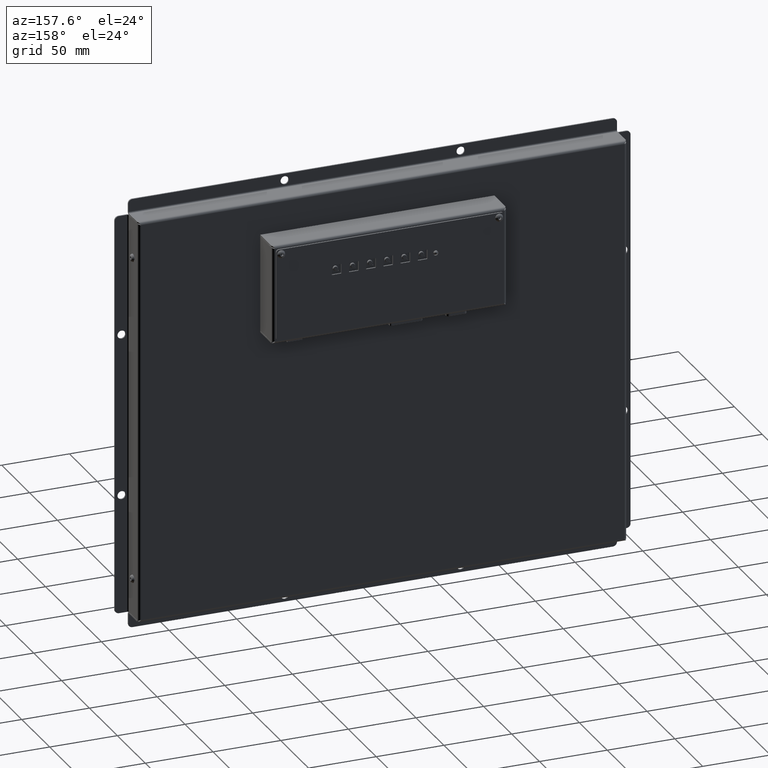
[diagram: clean part render]
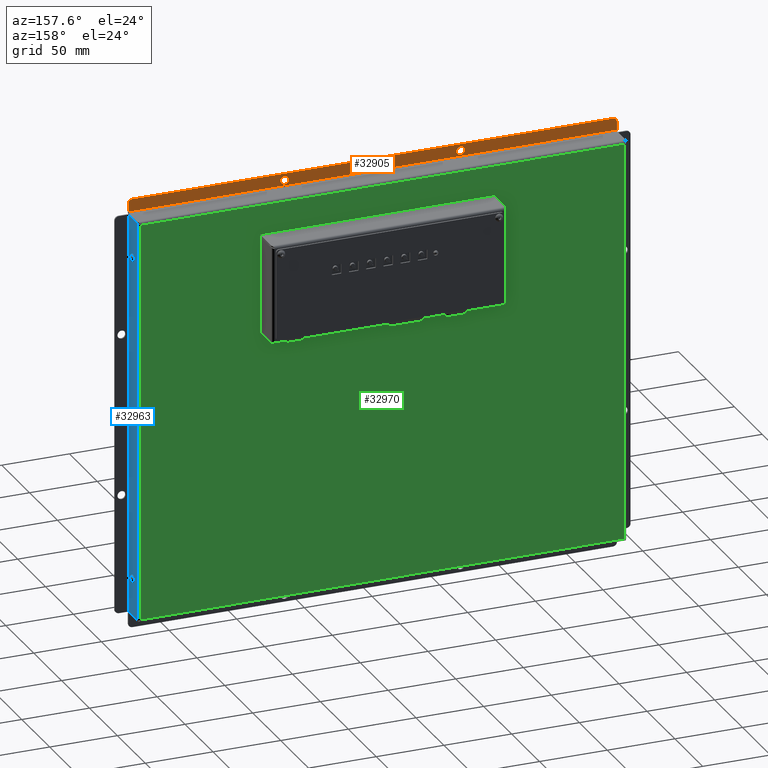
[diagram: same view with three faces highlighted in distinct colors, each labeled with its STEP entity id]
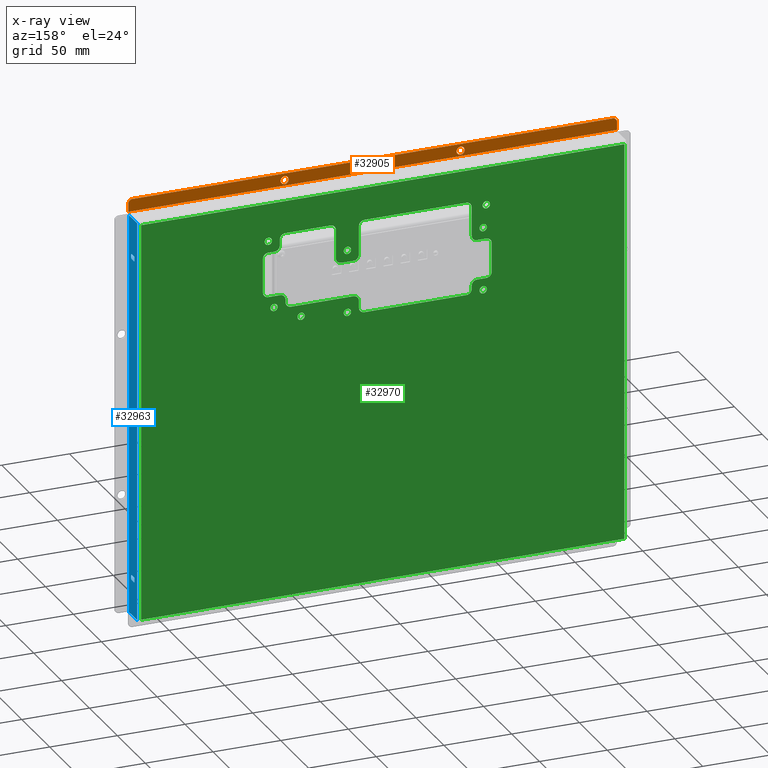
[diagram: x-ray of the same camera — body ghosted, the three highlighted faces saturated]
A machine part, auxiliary view with three faces highlighted in distinct colors.
The next image is the same camera in x-ray (body ghosted, the three faces saturated) — at least one of them is partly hidden behind the body in this view.
Their STEP definitions:

[orange] entity #32905 — the highlighted planar face has unit normal (0, 1, 0).
#2015=FACE_BOUND('',#5424,.T.);
#2016=FACE_BOUND('',#5425,.T.);
#2340=PLANE('',#35316);
#3549=FACE_OUTER_BOUND('',#5423,.T.);
#5423=EDGE_LOOP('',(#23352,#23353,#23354,#23355,#23356,#23357));
#5424=EDGE_LOOP('',(#23358));
#5425=EDGE_LOOP('',(#23359));
#7659=LINE('',#47877,#10869);
#7662=LINE('',#47883,#10872);
#7663=LINE('',#47885,#10873);
#7664=LINE('',#47887,#10874);
#10869=VECTOR('',#38702,10.);
#10872=VECTOR('',#38707,10.);
#10873=VECTOR('',#38708,10.);
#10874=VECTOR('',#38709,10.);
#13980=CIRCLE('',#35268,3.);
#13990=CIRCLE('',#35283,3.);
#14006=CIRCLE('',#35314,3.);
#14007=CIRCLE('',#35317,3.);
#15262=VERTEX_POINT('',#47738);
#15272=VERTEX_POINT('',#47768);
#15310=VERTEX_POINT('',#47870);
#15311=VERTEX_POINT('',#47872);
#15312=VERTEX_POINT('',#47876);
#15314=VERTEX_POINT('',#47882);
#15315=VERTEX_POINT('',#47884);
#15316=VERTEX_POINT('',#47886);
#18470=EDGE_CURVE('',#15262,#15262,#13980,.T.);
#18485=EDGE_CURVE('',#15272,#15272,#13990,.T.);
#18535=EDGE_CURVE('',#15310,#15311,#14006,.T.);
#18537=EDGE_CURVE('',#15312,#15311,#7659,.T.);
#18540=EDGE_CURVE('',#15314,#15310,#7662,.T.);
#18541=EDGE_CURVE('',#15314,#15315,#7663,.T.);
#18542=EDGE_CURVE('',#15315,#15316,#7664,.T.);
#18543=EDGE_CURVE('',#15312,#15316,#14007,.T.);
#23352=ORIENTED_EDGE('',*,*,#18535,.F.);
#23353=ORIENTED_EDGE('',*,*,#18540,.F.);
#23354=ORIENTED_EDGE('',*,*,#18541,.T.);
#23355=ORIENTED_EDGE('',*,*,#18542,.T.);
#23356=ORIENTED_EDGE('',*,*,#18543,.F.);
#23357=ORIENTED_EDGE('',*,*,#18537,.T.);
#23358=ORIENTED_EDGE('',*,*,#18470,.T.);
#23359=ORIENTED_EDGE('',*,*,#18485,.T.);
#32905=ADVANCED_FACE('',(#3549,#2015,#2016),#2340,.T.);
#35268=AXIS2_PLACEMENT_3D('',#47739,#38566,#38567);
#35283=AXIS2_PLACEMENT_3D('',#47769,#38601,#38602);
#35314=AXIS2_PLACEMENT_3D('',#47873,#38697,#38698);
#35316=AXIS2_PLACEMENT_3D('',#47881,#38705,#38706);
#35317=AXIS2_PLACEMENT_3D('',#47888,#38710,#38711);
#38566=DIRECTION('center_axis',(-2.56144527193814E-16,-1.72222121813455E-14,
1.));
#38567=DIRECTION('ref_axis',(1.,-1.04174775374666E-33,-1.66634849692134E-18));
#38601=DIRECTION('center_axis',(-2.56144527193814E-16,-1.72222121813455E-14,
1.));
#38602=DIRECTION('ref_axis',(1.,-1.04174775374666E-33,-1.66634849692134E-18));
#38697=DIRECTION('center_axis',(-2.56144527193814E-16,-1.72222121813455E-14,
1.));
#38698=DIRECTION('ref_axis',(0.707106781186556,0.707106781186539,1.25607396694702E-14));
#38702=DIRECTION('',(1.,2.56144527193811E-16,2.56144527193818E-16));
#38705=DIRECTION('center_axis',(2.56144527193814E-16,1.72222121813455E-14,
-1.));
#38706=DIRECTION('ref_axis',(-2.56144527193816E-16,1.,1.72222121813455E-14));
#38707=DIRECTION('',(1.5450298344231E-14,1.,1.67962379726711E-14));
#38708=DIRECTION('',(-1.,-2.56144527193811E-16,-2.56144527193818E-16));
#38709=DIRECTION('',(3.11567412156559E-14,1.,1.67962379726711E-14));
#38710=DIRECTION('center_axis',(-2.56144527193814E-16,-1.72222121813455E-14,
1.));
#38711=DIRECTION('ref_axis',(-0.707106781186552,0.707106781186543,1.25607396694701E-14));
#47738=CARTESIAN_POINT('',(-68.,154.5,18.));
#47739=CARTESIAN_POINT('Origin',(-65.,154.5,18.));
#47768=CARTESIAN_POINT('',(62.,154.5,18.));
#47769=CARTESIAN_POINT('Origin',(65.,154.5,18.));
#47870=CARTESIAN_POINT('',(180.5,156.5,18.0000000000002));
#47872=CARTESIAN_POINT('',(177.5,159.5,18.0000000000002));
#47873=CARTESIAN_POINT('Origin',(177.5,156.5,18.0000000000002));
#47876=CARTESIAN_POINT('',(-177.5,159.5,18.0000000000001));
#47877=CARTESIAN_POINT('',(-180.5,159.5,18.0000000000001));
#47881=CARTESIAN_POINT('Origin',(-5.8850699544714E-14,153.869026644708,
18.0000000000001));
#47882=CARTESIAN_POINT('',(180.5,150.5,18.0000000000001));
#47883=CARTESIAN_POINT('',(180.5,148.238053289415,18.0000000000001));
#47884=CARTESIAN_POINT('',(-180.5,150.5,18.));
#47885=CARTESIAN_POINT('',(-6.46490799554529E-14,150.5,18.));
#47886=CARTESIAN_POINT('',(-180.5,156.5,18.0000000000001));
#47887=CARTESIAN_POINT('',(-180.5,148.238053289415,18.));
#47888=CARTESIAN_POINT('Origin',(-177.5,156.5,18.0000000000001));

[blue] entity #32963 — the highlighted planar face has unit normal (-1, 0, -0).
#2029=FACE_BOUND('',#5496,.T.);
#2030=FACE_BOUND('',#5497,.T.);
#2373=PLANE('',#35384);
#3607=FACE_OUTER_BOUND('',#5495,.T.);
#5495=EDGE_LOOP('',(#23637,#23638,#23639,#23640));
#5496=EDGE_LOOP('',(#23641,#23642,#23643,#23644,#23645,#23646,#23647,#23648));
#5497=EDGE_LOOP('',(#23649,#23650,#23651,#23652,#23653,#23654,#23655,#23656));
#7556=LINE('',#47550,#10766);
#7560=LINE('',#47562,#10770);
#7564=LINE('',#47574,#10774);
#7568=LINE('',#47585,#10778);
#7572=LINE('',#47598,#10782);
#7576=LINE('',#47610,#10786);
#7580=LINE('',#47622,#10790);
#7584=LINE('',#47633,#10794);
#7705=LINE('',#47998,#10915);
#7714=LINE('',#48024,#10924);
#7733=LINE('',#48325,#10943);
#7735=LINE('',#48368,#10945);
#10766=VECTOR('',#38375,10.);
#10770=VECTOR('',#38387,10.);
#10774=VECTOR('',#38399,10.);
#10778=VECTOR('',#38411,10.);
#10782=VECTOR('',#38423,10.);
#10786=VECTOR('',#38435,10.);
#10790=VECTOR('',#38447,10.);
#10794=VECTOR('',#38459,10.);
#10915=VECTOR('',#38836,10.);
#10924=VECTOR('',#38867,10.);
#10943=VECTOR('',#38906,10.);
#10945=VECTOR('',#38910,10.);
#13946=CIRCLE('',#35201,1.);
#13948=CIRCLE('',#35205,1.00000000000001);
#13950=CIRCLE('',#35209,1.00000000000001);
#13952=CIRCLE('',#35213,1.00000000000001);
#13954=CIRCLE('',#35217,1.00000000000001);
#13956=CIRCLE('',#35221,1.00000000000002);
#13958=CIRCLE('',#35225,1.00000000000002);
#13960=CIRCLE('',#35229,1.00000000000002);
#15196=VERTEX_POINT('',#47540);
#15197=VERTEX_POINT('',#47541);
#15200=VERTEX_POINT('',#47549);
#15202=VERTEX_POINT('',#47555);
#15204=VERTEX_POINT('',#47561);
#15206=VERTEX_POINT('',#47567);
#15208=VERTEX_POINT('',#47573);
#15210=VERTEX_POINT('',#47579);
#15212=VERTEX_POINT('',#47588);
#15213=VERTEX_POINT('',#47589);
#15216=VERTEX_POINT('',#47597);
#15218=VERTEX_POINT('',#47603);
#15220=VERTEX_POINT('',#47609);
#15222=VERTEX_POINT('',#47615);
#15224=VERTEX_POINT('',#47621);
#15226=VERTEX_POINT('',#47627);
#15342=VERTEX_POINT('',#47989);
#15343=VERTEX_POINT('',#47993);
#15349=VERTEX_POINT('',#48022);
#15363=VERTEX_POINT('',#48281);
#18371=EDGE_CURVE('',#15196,#15197,#13946,.T.);
#18375=EDGE_CURVE('',#15200,#15196,#7556,.T.);
#18378=EDGE_CURVE('',#15202,#15200,#13948,.T.);
#18381=EDGE_CURVE('',#15204,#15202,#7560,.T.);
#18384=EDGE_CURVE('',#15206,#15204,#13950,.T.);
#18387=EDGE_CURVE('',#15208,#15206,#7564,.T.);
#18390=EDGE_CURVE('',#15210,#15208,#13952,.T.);
#18393=EDGE_CURVE('',#15197,#15210,#7568,.T.);
#18395=EDGE_CURVE('',#15212,#15213,#13954,.T.);
#18399=EDGE_CURVE('',#15216,#15212,#7572,.T.);
#18402=EDGE_CURVE('',#15218,#15216,#13956,.T.);
#18405=EDGE_CURVE('',#15220,#15218,#7576,.T.);
#18408=EDGE_CURVE('',#15222,#15220,#13958,.T.);
#18411=EDGE_CURVE('',#15224,#15222,#7580,.T.);
#18414=EDGE_CURVE('',#15226,#15224,#13960,.T.);
#18417=EDGE_CURVE('',#15213,#15226,#7584,.T.);
#18598=EDGE_CURVE('',#15342,#15343,#7705,.T.);
#18611=EDGE_CURVE('',#15349,#15343,#7714,.T.);
#18645=EDGE_CURVE('',#15349,#15363,#7733,.T.);
#18650=EDGE_CURVE('',#15342,#15363,#7735,.T.);
#23637=ORIENTED_EDGE('',*,*,#18598,.T.);
#23638=ORIENTED_EDGE('',*,*,#18611,.F.);
#23639=ORIENTED_EDGE('',*,*,#18645,.T.);
#23640=ORIENTED_EDGE('',*,*,#18650,.F.);
#23641=ORIENTED_EDGE('',*,*,#18371,.T.);
#23642=ORIENTED_EDGE('',*,*,#18393,.T.);
#23643=ORIENTED_EDGE('',*,*,#18390,.T.);
#23644=ORIENTED_EDGE('',*,*,#18387,.T.);
#23645=ORIENTED_EDGE('',*,*,#18384,.T.);
#23646=ORIENTED_EDGE('',*,*,#18381,.T.);
#23647=ORIENTED_EDGE('',*,*,#18378,.T.);
#23648=ORIENTED_EDGE('',*,*,#18375,.T.);
#23649=ORIENTED_EDGE('',*,*,#18395,.T.);
#23650=ORIENTED_EDGE('',*,*,#18417,.T.);
#23651=ORIENTED_EDGE('',*,*,#18414,.T.);
#23652=ORIENTED_EDGE('',*,*,#18411,.T.);
#23653=ORIENTED_EDGE('',*,*,#18408,.T.);
#23654=ORIENTED_EDGE('',*,*,#18405,.T.);
#23655=ORIENTED_EDGE('',*,*,#18402,.T.);
#23656=ORIENTED_EDGE('',*,*,#18399,.T.);
#32963=ADVANCED_FACE('',(#3607,#2029,#2030),#2373,.F.);
#35201=AXIS2_PLACEMENT_3D('',#47542,#38367,#38368);
#35205=AXIS2_PLACEMENT_3D('',#47556,#38380,#38381);
#35209=AXIS2_PLACEMENT_3D('',#47568,#38392,#38393);
#35213=AXIS2_PLACEMENT_3D('',#47580,#38404,#38405);
#35217=AXIS2_PLACEMENT_3D('',#47590,#38415,#38416);
#35221=AXIS2_PLACEMENT_3D('',#47604,#38428,#38429);
#35225=AXIS2_PLACEMENT_3D('',#47616,#38440,#38441);
#35229=AXIS2_PLACEMENT_3D('',#47628,#38452,#38453);
#35384=AXIS2_PLACEMENT_3D('',#48463,#38918,#38919);
#38367=DIRECTION('center_axis',(-1.,-2.40318283561376E-16,-8.39346411091411E-15));
#38368=DIRECTION('ref_axis',(8.88178419700113E-15,1.18391370382029E-15,
-1.));
#38375=DIRECTION('',(-8.39346411091411E-15,-7.36906791951359E-17,1.));
#38380=DIRECTION('center_axis',(-1.,-2.40318283561376E-16,-8.39346411091411E-15));
#38381=DIRECTION('ref_axis',(-1.05078737765767E-29,1.,1.18391370382029E-15));
#38387=DIRECTION('',(2.40318283561392E-16,-1.,-1.87780309421101E-15));
#38392=DIRECTION('center_axis',(-1.,-2.40318283561376E-16,-8.39346411091411E-15));
#38393=DIRECTION('ref_axis',(-8.88178419700113E-15,-1.18391370382029E-15,
1.));
#38399=DIRECTION('',(8.39346411091411E-15,1.18391370382029E-15,-1.));
#38404=DIRECTION('center_axis',(-1.,-2.40318283561376E-16,-8.39346411091411E-15));
#38405=DIRECTION('ref_axis',(1.05078737765767E-29,-1.,-1.18391370382029E-15));
#38411=DIRECTION('',(-2.40318283561386E-16,1.,1.18391370382029E-15));
#38415=DIRECTION('center_axis',(-1.,-2.40318283561376E-16,-8.39346411091411E-15));
#38416=DIRECTION('ref_axis',(1.05078737765766E-29,-1.,-1.18391370382029E-15));
#38423=DIRECTION('',(-2.40318283561375E-16,1.,-2.03865076961185E-16));
#38428=DIRECTION('center_axis',(-1.,-2.40318283561376E-16,-8.39346411091411E-15));
#38429=DIRECTION('ref_axis',(8.88178419700113E-15,1.18391370382029E-15,
-1.));
#38435=DIRECTION('',(-8.39346411091411E-15,-1.18391370382029E-15,1.));
#38440=DIRECTION('center_axis',(-1.,-2.40318283561376E-16,-8.39346411091411E-15));
#38441=DIRECTION('ref_axis',(-1.05078737765766E-29,1.,1.18391370382029E-15));
#38447=DIRECTION('',(2.40318283561383E-16,-1.,-8.36969008624921E-16));
#38452=DIRECTION('center_axis',(-1.,-2.40318283561376E-16,-8.39346411091411E-15));
#38453=DIRECTION('ref_axis',(-8.88178419700113E-15,-1.18391370382029E-15,
1.));
#38459=DIRECTION('',(8.39346411091411E-15,1.18391370382029E-15,-1.));
#38836=DIRECTION('',(2.40318283561374E-16,-1.,2.39401191293834E-16));
#38867=DIRECTION('',(-8.39346411091411E-15,8.88178419700122E-15,1.));
#38906=DIRECTION('',(-2.40318283561376E-16,1.,-9.51124685469077E-33));
#38910=DIRECTION('',(8.3934641109141E-15,8.88178419700135E-15,-1.));
#38918=DIRECTION('center_axis',(-1.,-2.40318283561376E-16,-8.39346411091411E-15));
#38919=DIRECTION('ref_axis',(-8.39346411091411E-15,-2.39239978370406E-16,
1.));
#47540=CARTESIAN_POINT('',(180.5,-122.299999999999,11.9000000000004));
#47541=CARTESIAN_POINT('',(180.5,-121.299999999999,12.9000000000004));
#47542=CARTESIAN_POINT('Origin',(180.5,-121.299999999999,11.9000000000004));
#47549=CARTESIAN_POINT('',(180.5,-122.299999999999,7.90000000000035));
#47550=CARTESIAN_POINT('',(180.5,-122.299999999999,8.38451332235403));
#47555=CARTESIAN_POINT('',(180.5,-121.299999999999,6.90000000000035));
#47556=CARTESIAN_POINT('Origin',(180.5,-121.299999999999,7.90000000000035));
#47561=CARTESIAN_POINT('',(180.5,-119.699999999999,6.90000000000036));
#47562=CARTESIAN_POINT('',(180.5,-59.8499999999995,6.90000000000047));
#47567=CARTESIAN_POINT('',(180.5,-118.699999999999,7.90000000000036));
#47568=CARTESIAN_POINT('Origin',(180.5,-119.699999999999,7.90000000000036));
#47573=CARTESIAN_POINT('',(180.5,-118.699999999999,11.9000000000004));
#47574=CARTESIAN_POINT('',(180.5,-118.699999999999,10.384513322354));
#47579=CARTESIAN_POINT('',(180.5,-119.699999999999,12.9000000000004));
#47580=CARTESIAN_POINT('Origin',(180.5,-119.699999999999,11.9000000000004));
#47585=CARTESIAN_POINT('',(180.5,-60.6499999999995,12.9000000000004));
#47588=CARTESIAN_POINT('',(180.5,120.3,12.9000000000001));
#47589=CARTESIAN_POINT('',(180.5,121.3,11.9000000000001));
#47590=CARTESIAN_POINT('Origin',(180.5,120.3,11.9000000000001));
#47597=CARTESIAN_POINT('',(180.5,118.7,12.9000000000001));
#47598=CARTESIAN_POINT('',(180.5,59.3500000000001,12.9000000000001));
#47603=CARTESIAN_POINT('',(180.5,117.7,11.9000000000001));
#47604=CARTESIAN_POINT('Origin',(180.5,118.7,11.9000000000001));
#47609=CARTESIAN_POINT('',(180.5,117.7,7.9000000000001));
#47610=CARTESIAN_POINT('',(180.5,117.7,8.38451332235397));
#47615=CARTESIAN_POINT('',(180.5,118.7,6.9000000000001));
#47616=CARTESIAN_POINT('Origin',(180.5,118.7,7.9000000000001));
#47621=CARTESIAN_POINT('',(180.5,120.3,6.9000000000001));
#47622=CARTESIAN_POINT('',(180.5,60.15,6.90000000000005));
#47627=CARTESIAN_POINT('',(180.5,121.3,7.9000000000001));
#47628=CARTESIAN_POINT('Origin',(180.5,120.3,7.9000000000001));
#47633=CARTESIAN_POINT('',(180.5,121.3,10.384513322354));
#47989=CARTESIAN_POINT('',(180.5,148.4,17.));
#47993=CARTESIAN_POINT('',(180.5,-148.4,17.0000000000001));
#47998=CARTESIAN_POINT('',(180.5,-74.1999999999999,17.0000000000001));
#48022=CARTESIAN_POINT('',(180.5,-148.4,1.99999999999992));
#48024=CARTESIAN_POINT('',(180.5,-148.4,9.43451332235456));
#48281=CARTESIAN_POINT('',(180.5,148.4,2.00000000000027));
#48325=CARTESIAN_POINT('',(180.5,6.60298460824734E-15,2.00000000000006));
#48368=CARTESIAN_POINT('',(180.5,148.4,9.43451332235458));
#48463=CARTESIAN_POINT('Origin',(180.5,-5.03668298515556E-15,8.86902664470771));

[green] entity #32970 — the highlighted planar face has unit normal (-0, -1, 0).
#2033=FACE_BOUND('',#5507,.T.);
#2034=FACE_BOUND('',#5508,.T.);
#2035=FACE_BOUND('',#5509,.T.);
#2036=FACE_BOUND('',#5510,.T.);
#2037=FACE_BOUND('',#5511,.T.);
#2038=FACE_BOUND('',#5512,.T.);
#2039=FACE_BOUND('',#5513,.T.);
#2040=FACE_BOUND('',#5514,.T.);
#2041=FACE_BOUND('',#5515,.T.);
#2375=PLANE('',#35388);
#3614=FACE_OUTER_BOUND('',#5506,.T.);
#5506=EDGE_LOOP('',(#23696,#23697,#23698,#23699));
#5507=EDGE_LOOP('',(#23700));
#5508=EDGE_LOOP('',(#23701));
#5509=EDGE_LOOP('',(#23702));
#5510=EDGE_LOOP('',(#23703));
#5511=EDGE_LOOP('',(#23704,#23705,#23706,#23707,#23708,#23709,#23710,#23711,
#23712,#23713,#23714,#23715,#23716,#23717,#23718,#23719,#23720,#23721,#23722,
#23723,#23724,#23725,#23726,#23727,#23728,#23729,#23730,#23731,#23732,#23733,
#23734,#23735,#23736,#23737,#23738,#23739));
#5512=EDGE_LOOP('',(#23740));
#5513=EDGE_LOOP('',(#23741));
#5514=EDGE_LOOP('',(#23742));
#5515=EDGE_LOOP('',(#23743));
#7478=LINE('',#47302,#10688);
#7483=LINE('',#47316,#10693);
#7487=LINE('',#47328,#10697);
#7491=LINE('',#47340,#10701);
#7495=LINE('',#47352,#10705);
#7499=LINE('',#47364,#10709);
#7503=LINE('',#47376,#10713);
#7507=LINE('',#47388,#10717);
#7511=LINE('',#47400,#10721);
#7515=LINE('',#47412,#10725);
#7519=LINE('',#47424,#10729);
#7523=LINE('',#47436,#10733);
#7527=LINE('',#47448,#10737);
#7531=LINE('',#47460,#10741);
#7535=LINE('',#47472,#10745);
#7539=LINE('',#47484,#10749);
#7543=LINE('',#47496,#10753);
#7547=LINE('',#47508,#10757);
#7729=LINE('',#48180,#10939);
#7734=LINE('',#48339,#10944);
#7740=LINE('',#48544,#10950);
#7741=LINE('',#48546,#10951);
#10688=VECTOR('',#38123,10.);
#10693=VECTOR('',#38136,10.);
#10697=VECTOR('',#38148,10.);
#10701=VECTOR('',#38160,10.);
#10705=VECTOR('',#38172,10.);
#10709=VECTOR('',#38184,10.);
#10713=VECTOR('',#38196,10.);
#10717=VECTOR('',#38208,10.);
#10721=VECTOR('',#38220,10.);
#10725=VECTOR('',#38232,10.);
#10729=VECTOR('',#38244,10.);
#10733=VECTOR('',#38256,10.);
#10737=VECTOR('',#38268,10.);
#10741=VECTOR('',#38280,10.);
#10745=VECTOR('',#38292,10.);
#10749=VECTOR('',#38304,10.);
#10753=VECTOR('',#38316,10.);
#10757=VECTOR('',#38328,10.);
#10939=VECTOR('',#38898,10.);
#10944=VECTOR('',#38907,10.);
#10950=VECTOR('',#38925,10.);
#10951=VECTOR('',#38928,10.);
#13894=CIRCLE('',#35105,2.705);
#13896=CIRCLE('',#35108,2.705);
#13898=CIRCLE('',#35111,2.705);
#13900=CIRCLE('',#35114,2.705);
#13902=CIRCLE('',#35118,4.00000000000001);
#13904=CIRCLE('',#35122,4.);
#13906=CIRCLE('',#35126,4.00000000000002);
#13908=CIRCLE('',#35130,4.00000000000003);
#13910=CIRCLE('',#35134,4.00000000000001);
#13912=CIRCLE('',#35138,4.00000000000001);
#13914=CIRCLE('',#35142,4.);
#13916=CIRCLE('',#35146,3.99999999999999);
#13918=CIRCLE('',#35150,4.00000000000002);
#13920=CIRCLE('',#35154,3.99999999999999);
#13922=CIRCLE('',#35158,4.);
#13924=CIRCLE('',#35162,4.00000000000001);
#13926=CIRCLE('',#35166,3.99999999999999);
#13928=CIRCLE('',#35170,4.);
#13930=CIRCLE('',#35174,4.00000000000001);
#13932=CIRCLE('',#35178,4.);
#13934=CIRCLE('',#35182,4.);
#13936=CIRCLE('',#35186,4.00000000000002);
#13938=CIRCLE('',#35189,2.705);
#13940=CIRCLE('',#35192,2.705);
#13942=CIRCLE('',#35195,2.705);
#13944=CIRCLE('',#35198,2.705);
#15108=VERTEX_POINT('',#47276);
#15110=VERTEX_POINT('',#47282);
#15112=VERTEX_POINT('',#47288);
#15114=VERTEX_POINT('',#47294);
#15116=VERTEX_POINT('',#47300);
#15117=VERTEX_POINT('',#47301);
#15120=VERTEX_POINT('',#47309);
#15122=VERTEX_POINT('',#47315);
#15124=VERTEX_POINT('',#47321);
#15126=VERTEX_POINT('',#47327);
#15128=VERTEX_POINT('',#47333);
#15130=VERTEX_POINT('',#47339);
#15132=VERTEX_POINT('',#47345);
#15134=VERTEX_POINT('',#47351);
#15136=VERTEX_POINT('',#47357);
#15138=VERTEX_POINT('',#47363);
#15140=VERTEX_POINT('',#47369);
#15142=VERTEX_POINT('',#47375);
#15144=VERTEX_POINT('',#47381);
#15146=VERTEX_POINT('',#47387);
#15148=VERTEX_POINT('',#47393);
#15150=VERTEX_POINT('',#47399);
#15152=VERTEX_POINT('',#47405);
#15154=VERTEX_POINT('',#47411);
#15156=VERTEX_POINT('',#47417);
#15158=VERTEX_POINT('',#47423);
#15160=VERTEX_POINT('',#47429);
#15162=VERTEX_POINT('',#47435);
#15164=VERTEX_POINT('',#47441);
#15166=VERTEX_POINT('',#47447);
#15168=VERTEX_POINT('',#47453);
#15170=VERTEX_POINT('',#47459);
#15172=VERTEX_POINT('',#47465);
#15174=VERTEX_POINT('',#47471);
#15176=VERTEX_POINT('',#47477);
#15178=VERTEX_POINT('',#47483);
#15180=VERTEX_POINT('',#47489);
#15182=VERTEX_POINT('',#47495);
#15184=VERTEX_POINT('',#47501);
#15186=VERTEX_POINT('',#47507);
#15188=VERTEX_POINT('',#47516);
#15190=VERTEX_POINT('',#47522);
#15192=VERTEX_POINT('',#47528);
#15194=VERTEX_POINT('',#47534);
#15358=VERTEX_POINT('',#48090);
#15360=VERTEX_POINT('',#48179);
#15364=VERTEX_POINT('',#48307);
#15367=VERTEX_POINT('',#48331);
#18239=EDGE_CURVE('',#15108,#15108,#13894,.T.);
#18242=EDGE_CURVE('',#15110,#15110,#13896,.T.);
#18245=EDGE_CURVE('',#15112,#15112,#13898,.T.);
#18248=EDGE_CURVE('',#15114,#15114,#13900,.T.);
#18251=EDGE_CURVE('',#15116,#15117,#7478,.T.);
#18255=EDGE_CURVE('',#15120,#15116,#13902,.T.);
#18258=EDGE_CURVE('',#15122,#15120,#7483,.T.);
#18261=EDGE_CURVE('',#15124,#15122,#13904,.T.);
#18264=EDGE_CURVE('',#15126,#15124,#7487,.T.);
#18267=EDGE_CURVE('',#15128,#15126,#13906,.T.);
#18270=EDGE_CURVE('',#15130,#15128,#7491,.T.);
#18273=EDGE_CURVE('',#15132,#15130,#13908,.T.);
#18276=EDGE_CURVE('',#15134,#15132,#7495,.T.);
#18279=EDGE_CURVE('',#15136,#15134,#13910,.T.);
#18282=EDGE_CURVE('',#15138,#15136,#7499,.T.);
#18285=EDGE_CURVE('',#15140,#15138,#13912,.T.);
#18288=EDGE_CURVE('',#15142,#15140,#7503,.T.);
#18291=EDGE_CURVE('',#15144,#15142,#13914,.T.);
#18294=EDGE_CURVE('',#15146,#15144,#7507,.T.);
#18297=EDGE_CURVE('',#15148,#15146,#13916,.T.);
#18300=EDGE_CURVE('',#15150,#15148,#7511,.T.);
#18303=EDGE_CURVE('',#15152,#15150,#13918,.T.);
#18306=EDGE_CURVE('',#15154,#15152,#7515,.T.);
#18309=EDGE_CURVE('',#15156,#15154,#13920,.T.);
#18312=EDGE_CURVE('',#15158,#15156,#7519,.T.);
#18315=EDGE_CURVE('',#15160,#15158,#13922,.T.);
#18318=EDGE_CURVE('',#15162,#15160,#7523,.T.);
#18321=EDGE_CURVE('',#15164,#15162,#13924,.T.);
#18324=EDGE_CURVE('',#15166,#15164,#7527,.T.);
#18327=EDGE_CURVE('',#15168,#15166,#13926,.T.);
#18330=EDGE_CURVE('',#15170,#15168,#7531,.T.);
#18333=EDGE_CURVE('',#15172,#15170,#13928,.T.);
#18336=EDGE_CURVE('',#15174,#15172,#7535,.T.);
#18339=EDGE_CURVE('',#15176,#15174,#13930,.T.);
#18342=EDGE_CURVE('',#15178,#15176,#7539,.T.);
#18345=EDGE_CURVE('',#15180,#15178,#13932,.T.);
#18348=EDGE_CURVE('',#15182,#15180,#7543,.T.);
#18351=EDGE_CURVE('',#15184,#15182,#13934,.T.);
#18354=EDGE_CURVE('',#15186,#15184,#7547,.T.);
#18357=EDGE_CURVE('',#15117,#15186,#13936,.T.);
#18359=EDGE_CURVE('',#15188,#15188,#13938,.T.);
#18362=EDGE_CURVE('',#15190,#15190,#13940,.T.);
#18365=EDGE_CURVE('',#15192,#15192,#13942,.T.);
#18368=EDGE_CURVE('',#15194,#15194,#13944,.T.);
#18634=EDGE_CURVE('',#15360,#15358,#7729,.T.);
#18648=EDGE_CURVE('',#15364,#15367,#7734,.T.);
#18661=EDGE_CURVE('',#15358,#15364,#7740,.T.);
#18662=EDGE_CURVE('',#15367,#15360,#7741,.T.);
#23696=ORIENTED_EDGE('',*,*,#18661,.T.);
#23697=ORIENTED_EDGE('',*,*,#18648,.T.);
#23698=ORIENTED_EDGE('',*,*,#18662,.T.);
#23699=ORIENTED_EDGE('',*,*,#18634,.T.);
#23700=ORIENTED_EDGE('',*,*,#18239,.T.);
#23701=ORIENTED_EDGE('',*,*,#18242,.T.);
#23702=ORIENTED_EDGE('',*,*,#18245,.T.);
#23703=ORIENTED_EDGE('',*,*,#18248,.T.);
#23704=ORIENTED_EDGE('',*,*,#18251,.T.);
#23705=ORIENTED_EDGE('',*,*,#18357,.T.);
#23706=ORIENTED_EDGE('',*,*,#18354,.T.);
#23707=ORIENTED_EDGE('',*,*,#18351,.T.);
#23708=ORIENTED_EDGE('',*,*,#18348,.T.);
#23709=ORIENTED_EDGE('',*,*,#18345,.T.);
#23710=ORIENTED_EDGE('',*,*,#18342,.T.);
#23711=ORIENTED_EDGE('',*,*,#18339,.T.);
#23712=ORIENTED_EDGE('',*,*,#18336,.T.);
#23713=ORIENTED_EDGE('',*,*,#18333,.T.);
#23714=ORIENTED_EDGE('',*,*,#18330,.T.);
#23715=ORIENTED_EDGE('',*,*,#18327,.T.);
#23716=ORIENTED_EDGE('',*,*,#18324,.T.);
#23717=ORIENTED_EDGE('',*,*,#18321,.T.);
#23718=ORIENTED_EDGE('',*,*,#18318,.T.);
#23719=ORIENTED_EDGE('',*,*,#18315,.T.);
#23720=ORIENTED_EDGE('',*,*,#18312,.T.);
#23721=ORIENTED_EDGE('',*,*,#18309,.T.);
#23722=ORIENTED_EDGE('',*,*,#18306,.T.);
#23723=ORIENTED_EDGE('',*,*,#18303,.T.);
#23724=ORIENTED_EDGE('',*,*,#18300,.T.);
#23725=ORIENTED_EDGE('',*,*,#18297,.T.);
#23726=ORIENTED_EDGE('',*,*,#18294,.T.);
#23727=ORIENTED_EDGE('',*,*,#18291,.T.);
#23728=ORIENTED_EDGE('',*,*,#18288,.T.);
#23729=ORIENTED_EDGE('',*,*,#18285,.T.);
#23730=ORIENTED_EDGE('',*,*,#18282,.T.);
#23731=ORIENTED_EDGE('',*,*,#18279,.T.);
#23732=ORIENTED_EDGE('',*,*,#18276,.T.);
#23733=ORIENTED_EDGE('',*,*,#18273,.T.);
#23734=ORIENTED_EDGE('',*,*,#18270,.T.);
#23735=ORIENTED_EDGE('',*,*,#18267,.T.);
#23736=ORIENTED_EDGE('',*,*,#18264,.T.);
#23737=ORIENTED_EDGE('',*,*,#18261,.T.);
#23738=ORIENTED_EDGE('',*,*,#18258,.T.);
#23739=ORIENTED_EDGE('',*,*,#18255,.T.);
#23740=ORIENTED_EDGE('',*,*,#18359,.T.);
#23741=ORIENTED_EDGE('',*,*,#18362,.T.);
#23742=ORIENTED_EDGE('',*,*,#18365,.T.);
#23743=ORIENTED_EDGE('',*,*,#18368,.T.);
#32970=ADVANCED_FACE('',(#3614,#2033,#2034,#2035,#2036,#2037,#2038,#2039,
#2040,#2041),#2375,.F.);
#35105=AXIS2_PLACEMENT_3D('',#47277,#38095,#38096);
#35108=AXIS2_PLACEMENT_3D('',#47283,#38102,#38103);
#35111=AXIS2_PLACEMENT_3D('',#47289,#38109,#38110);
#35114=AXIS2_PLACEMENT_3D('',#47295,#38116,#38117);
#35118=AXIS2_PLACEMENT_3D('',#47310,#38129,#38130);
#35122=AXIS2_PLACEMENT_3D('',#47322,#38141,#38142);
#35126=AXIS2_PLACEMENT_3D('',#47334,#38153,#38154);
#35130=AXIS2_PLACEMENT_3D('',#47346,#38165,#38166);
#35134=AXIS2_PLACEMENT_3D('',#47358,#38177,#38178);
#35138=AXIS2_PLACEMENT_3D('',#47370,#38189,#38190);
#35142=AXIS2_PLACEMENT_3D('',#47382,#38201,#38202);
#35146=AXIS2_PLACEMENT_3D('',#47394,#38213,#38214);
#35150=AXIS2_PLACEMENT_3D('',#47406,#38225,#38226);
#35154=AXIS2_PLACEMENT_3D('',#47418,#38237,#38238);
#35158=AXIS2_PLACEMENT_3D('',#47430,#38249,#38250);
#35162=AXIS2_PLACEMENT_3D('',#47442,#38261,#38262);
#35166=AXIS2_PLACEMENT_3D('',#47454,#38273,#38274);
#35170=AXIS2_PLACEMENT_3D('',#47466,#38285,#38286);
#35174=AXIS2_PLACEMENT_3D('',#47478,#38297,#38298);
#35178=AXIS2_PLACEMENT_3D('',#47490,#38309,#38310);
#35182=AXIS2_PLACEMENT_3D('',#47502,#38321,#38322);
#35186=AXIS2_PLACEMENT_3D('',#47513,#38333,#38334);
#35189=AXIS2_PLACEMENT_3D('',#47517,#38339,#38340);
#35192=AXIS2_PLACEMENT_3D('',#47523,#38346,#38347);
#35195=AXIS2_PLACEMENT_3D('',#47529,#38353,#38354);
#35198=AXIS2_PLACEMENT_3D('',#47535,#38360,#38361);
#35388=AXIS2_PLACEMENT_3D('',#48547,#38929,#38930);
#38095=DIRECTION('center_axis',(0.,0.,1.));
#38096=DIRECTION('ref_axis',(1.,0.,0.));
#38102=DIRECTION('center_axis',(0.,0.,1.));
#38103=DIRECTION('ref_axis',(1.,0.,0.));
#38109=DIRECTION('center_axis',(0.,0.,1.));
#38110=DIRECTION('ref_axis',(1.,0.,0.));
#38116=DIRECTION('center_axis',(0.,0.,1.));
#38117=DIRECTION('ref_axis',(1.,0.,0.));
#38123=DIRECTION('',(-1.,0.,0.));
#38129=DIRECTION('center_axis',(0.,0.,1.));
#38130=DIRECTION('ref_axis',(0.,1.,0.));
#38136=DIRECTION('',(0.,1.,0.));
#38141=DIRECTION('center_axis',(0.,0.,-1.));
#38142=DIRECTION('ref_axis',(0.,1.,0.));
#38148=DIRECTION('',(-1.,7.89491928622332E-15,0.));
#38153=DIRECTION('center_axis',(0.,0.,1.));
#38154=DIRECTION('ref_axis',(0.,1.,0.));
#38160=DIRECTION('',(0.,1.,0.));
#38165=DIRECTION('center_axis',(0.,0.,1.));
#38166=DIRECTION('ref_axis',(1.,0.,0.));
#38172=DIRECTION('',(1.,0.,0.));
#38177=DIRECTION('center_axis',(0.,0.,-1.));
#38178=DIRECTION('ref_axis',(1.,0.,0.));
#38184=DIRECTION('',(0.,1.,0.));
#38189=DIRECTION('center_axis',(0.,0.,1.));
#38190=DIRECTION('ref_axis',(1.,0.,0.));
#38196=DIRECTION('',(1.,1.92163223648108E-16,0.));
#38201=DIRECTION('center_axis',(0.,0.,-1.));
#38202=DIRECTION('ref_axis',(1.,0.,0.));
#38208=DIRECTION('',(4.18952084764222E-16,1.,0.));
#38213=DIRECTION('center_axis',(0.,0.,1.));
#38214=DIRECTION('ref_axis',(1.,0.,0.));
#38220=DIRECTION('',(1.,-4.71807925471186E-16,0.));
#38225=DIRECTION('center_axis',(0.,0.,1.));
#38226=DIRECTION('ref_axis',(0.,-1.,0.));
#38232=DIRECTION('',(0.,-1.,0.));
#38237=DIRECTION('center_axis',(0.,0.,-1.));
#38238=DIRECTION('ref_axis',(0.,-1.,0.));
#38244=DIRECTION('',(1.,-1.30999766920449E-15,0.));
#38249=DIRECTION('center_axis',(0.,0.,1.));
#38250=DIRECTION('ref_axis',(0.,-1.,0.));
#38256=DIRECTION('',(0.,-1.,0.));
#38261=DIRECTION('center_axis',(0.,0.,1.));
#38262=DIRECTION('ref_axis',(-1.,0.,0.));
#38268=DIRECTION('',(-1.,0.,0.));
#38273=DIRECTION('center_axis',(0.,0.,-1.));
#38274=DIRECTION('ref_axis',(-1.,0.,0.));
#38280=DIRECTION('',(4.18952084764204E-16,-1.,0.));
#38285=DIRECTION('center_axis',(0.,0.,1.));
#38286=DIRECTION('ref_axis',(-1.,0.,0.));
#38292=DIRECTION('',(-1.,-2.35903962735745E-16,0.));
#38297=DIRECTION('center_axis',(0.,0.,1.));
#38298=DIRECTION('ref_axis',(0.,1.,0.));
#38304=DIRECTION('',(1.04738021191051E-16,1.,0.));
#38309=DIRECTION('center_axis',(0.,0.,-1.));
#38310=DIRECTION('ref_axis',(0.,1.,0.));
#38316=DIRECTION('',(-1.,1.97372982155583E-15,0.));
#38321=DIRECTION('center_axis',(0.,0.,-1.));
#38322=DIRECTION('ref_axis',(-1.,0.,0.));
#38328=DIRECTION('',(-2.09476042382103E-16,-1.,0.));
#38333=DIRECTION('center_axis',(0.,0.,1.));
#38334=DIRECTION('ref_axis',(-1.,0.,0.));
#38339=DIRECTION('center_axis',(0.,0.,1.));
#38340=DIRECTION('ref_axis',(1.,0.,0.));
#38346=DIRECTION('center_axis',(0.,0.,1.));
#38347=DIRECTION('ref_axis',(1.,0.,0.));
#38353=DIRECTION('center_axis',(0.,0.,1.));
#38354=DIRECTION('ref_axis',(1.,0.,0.));
#38360=DIRECTION('center_axis',(0.,0.,1.));
#38361=DIRECTION('ref_axis',(1.,0.,0.));
#38898=DIRECTION('',(-2.39239978370404E-16,1.,0.));
#38907=DIRECTION('',(2.39239978370404E-16,-1.,0.));
#38925=DIRECTION('',(1.,9.95157893221429E-17,0.));
#38928=DIRECTION('',(-1.,0.,0.));
#38929=DIRECTION('center_axis',(0.,0.,1.));
#38930=DIRECTION('ref_axis',(1.,0.,0.));
#47276=CARTESIAN_POINT('',(77.5949999998215,69.2999999999996,0.));
#47277=CARTESIAN_POINT('Origin',(80.2999999998215,69.2999999999996,0.));
#47282=CARTESIAN_POINT('',(23.374999999896,56.4,0.));
#47283=CARTESIAN_POINT('Origin',(26.079999999896,56.4,0.));
#47288=CARTESIAN_POINT('',(-79.205,119.5,0.));
#47289=CARTESIAN_POINT('Origin',(-76.5,119.5,0.));
#47294=CARTESIAN_POINT('',(81.7950000000002,119.5,0.));
#47295=CARTESIAN_POINT('Origin',(84.5000000000002,119.5,0.));
#47300=CARTESIAN_POINT('',(72.0000000000002,123.5,0.));
#47301=CARTESIAN_POINT('',(38.5799999999001,123.5,0.));
#47302=CARTESIAN_POINT('',(36.0000000000001,123.5,0.));
#47309=CARTESIAN_POINT('',(76.0000000000002,119.5,0.));
#47310=CARTESIAN_POINT('Origin',(72.0000000000002,119.5,0.));
#47315=CARTESIAN_POINT('',(76.0000000000002,115.,0.));
#47316=CARTESIAN_POINT('',(76.0000000000002,57.5000000000001,0.));
#47321=CARTESIAN_POINT('',(80.0000000000002,111.,0.));
#47322=CARTESIAN_POINT('Origin',(80.0000000000002,115.,0.));
#47327=CARTESIAN_POINT('',(84.5000000000002,111.,0.));
#47328=CARTESIAN_POINT('',(42.2500000000006,111.,0.));
#47333=CARTESIAN_POINT('',(88.5000000000002,107.,0.));
#47334=CARTESIAN_POINT('Origin',(84.5000000000002,107.,0.));
#47339=CARTESIAN_POINT('',(88.5000000000002,81.7999999999996,0.));
#47340=CARTESIAN_POINT('',(88.5000000000002,40.8999999999998,0.));
#47345=CARTESIAN_POINT('',(84.5000000000002,77.7999999999996,0.));
#47346=CARTESIAN_POINT('Origin',(84.5000000000002,81.7999999999996,0.));
#47351=CARTESIAN_POINT('',(75.7999999998215,77.7999999999996,0.));
#47352=CARTESIAN_POINT('',(37.8999999999108,77.7999999999996,0.));
#47357=CARTESIAN_POINT('',(71.7999999998215,73.7999999999996,0.));
#47358=CARTESIAN_POINT('Origin',(75.7999999998215,73.7999999999996,0.));
#47363=CARTESIAN_POINT('',(71.7999999998215,71.7999999999998,0.));
#47364=CARTESIAN_POINT('',(71.7999999998215,35.8999999999999,0.));
#47369=CARTESIAN_POINT('',(67.7999999998215,67.7999999999998,0.));
#47370=CARTESIAN_POINT('Origin',(67.7999999998215,71.7999999999998,0.));
#47375=CARTESIAN_POINT('',(21.579999999896,67.7999999999998,0.));
#47376=CARTESIAN_POINT('',(10.789999999948,67.7999999999998,0.));
#47381=CARTESIAN_POINT('',(17.579999999896,63.7999999999998,0.));
#47382=CARTESIAN_POINT('Origin',(21.579999999896,63.7999999999998,0.));
#47387=CARTESIAN_POINT('',(17.579999999896,58.4999999999999,0.));
#47388=CARTESIAN_POINT('',(17.579999999896,29.25,0.));
#47393=CARTESIAN_POINT('',(13.579999999896,54.4999999999999,0.));
#47394=CARTESIAN_POINT('Origin',(13.579999999896,58.4999999999999,0.));
#47399=CARTESIAN_POINT('',(-61.7200000001564,54.5,0.));
#47400=CARTESIAN_POINT('',(-30.8600000000782,54.5,0.));
#47405=CARTESIAN_POINT('',(-65.7200000001564,58.5,0.));
#47406=CARTESIAN_POINT('Origin',(-61.7200000001564,58.5,0.));
#47411=CARTESIAN_POINT('',(-65.7200000001564,60.8,0.));
#47412=CARTESIAN_POINT('',(-65.7200000001564,30.4,0.));
#47417=CARTESIAN_POINT('',(-69.7200000001564,64.8,0.));
#47418=CARTESIAN_POINT('Origin',(-69.7200000001564,60.8,0.));
#47423=CARTESIAN_POINT('',(-76.4999999999998,64.8,0.));
#47424=CARTESIAN_POINT('',(-38.2499999999998,64.7999999999999,0.));
#47429=CARTESIAN_POINT('',(-80.4999999999998,68.8,0.));
#47430=CARTESIAN_POINT('Origin',(-76.4999999999998,68.8,0.));
#47435=CARTESIAN_POINT('',(-80.4999999999998,90.2999999999997,0.));
#47436=CARTESIAN_POINT('',(-80.4999999999998,45.1499999999998,0.));
#47441=CARTESIAN_POINT('',(-76.4999999999998,94.2999999999996,0.));
#47442=CARTESIAN_POINT('Origin',(-76.4999999999998,90.2999999999997,0.));
#47447=CARTESIAN_POINT('',(-69.7200000001037,94.2999999999996,0.));
#47448=CARTESIAN_POINT('',(-34.8600000000518,94.2999999999996,0.));
#47453=CARTESIAN_POINT('',(-65.7200000001036,98.2999999999997,0.));
#47454=CARTESIAN_POINT('Origin',(-69.7200000001037,98.2999999999997,0.));
#47459=CARTESIAN_POINT('',(-65.7200000001036,119.5,0.));
#47460=CARTESIAN_POINT('',(-65.7200000001036,59.75,0.));
#47465=CARTESIAN_POINT('',(-61.7200000001036,123.5,0.));
#47466=CARTESIAN_POINT('Origin',(-61.7200000001036,119.5,0.));
#47471=CARTESIAN_POINT('',(13.5799999999001,123.5,0.));
#47472=CARTESIAN_POINT('',(6.78999999995002,123.5,0.));
#47477=CARTESIAN_POINT('',(17.5799999999001,119.5,0.));
#47478=CARTESIAN_POINT('Origin',(13.5799999999001,119.5,0.));
#47483=CARTESIAN_POINT('',(17.5799999999001,98.2999999999997,0.));
#47484=CARTESIAN_POINT('',(17.5799999999001,49.1499999999999,0.));
#47489=CARTESIAN_POINT('',(21.5799999999001,94.2999999999997,0.));
#47490=CARTESIAN_POINT('Origin',(21.5799999999001,98.2999999999997,0.));
#47495=CARTESIAN_POINT('',(30.5799999999001,94.2999999999997,0.));
#47496=CARTESIAN_POINT('',(15.2899999999501,94.2999999999998,0.));
#47501=CARTESIAN_POINT('',(34.5799999999001,98.2999999999997,0.));
#47502=CARTESIAN_POINT('Origin',(30.5799999999001,98.2999999999997,0.));
#47507=CARTESIAN_POINT('',(34.5799999999001,119.5,0.));
#47508=CARTESIAN_POINT('',(34.5799999999001,59.75,0.));
#47513=CARTESIAN_POINT('Origin',(38.5799999999001,119.5,0.));
#47516=CARTESIAN_POINT('',(-76.9250000001036,102.8,0.));
#47517=CARTESIAN_POINT('Origin',(-74.2200000001036,102.8,0.));
#47522=CARTESIAN_POINT('',(-76.9250000001564,56.3,0.));
#47523=CARTESIAN_POINT('Origin',(-74.2200000001564,56.3,0.));
#47528=CARTESIAN_POINT('',(57.5949999999394,59.2999999999998,0.));
#47529=CARTESIAN_POINT('Origin',(60.2999999999394,59.2999999999998,0.));
#47534=CARTESIAN_POINT('',(23.3749999999001,102.8,0.));
#47535=CARTESIAN_POINT('Origin',(26.0799999999001,102.8,0.));
#48090=CARTESIAN_POINT('',(-178.5,147.5,-2.77555756156289E-16));
#48179=CARTESIAN_POINT('',(-178.5,-147.5,-2.77555756156289E-16));
#48180=CARTESIAN_POINT('',(-178.5,-74.25,0.));
#48307=CARTESIAN_POINT('',(178.5,147.5,-2.77555756156289E-16));
#48331=CARTESIAN_POINT('',(178.5,-147.5,-2.77555756156289E-16));
#48339=CARTESIAN_POINT('',(178.5,74.25,0.));
#48544=CARTESIAN_POINT('',(-89.25,147.5,0.));
#48546=CARTESIAN_POINT('',(89.25,-147.5,0.));
#48547=CARTESIAN_POINT('Origin',(8.88178419700125E-15,1.18062741155261E-14,
0.));